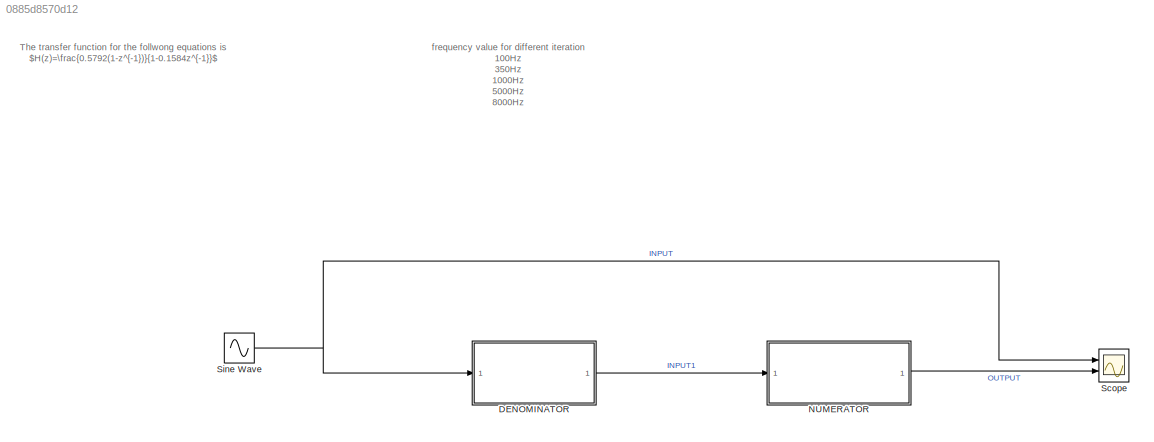
MODEL slx_0885d8570d12
KIND model
CONFIG AbsTol = auto
CONFIG EnableMultiTasking = off
CONFIG FixedStep = auto
CONFIG MaxStep = 0.00002
CONFIG MinStep = auto
CONFIG RelTol = 1e-3
CONFIG SampleTimeConstraint = Unconstrained
CONFIG SolverName = VariableStepAuto
CONFIG StartTime = 0.0
CONFIG StopTime = 10.0
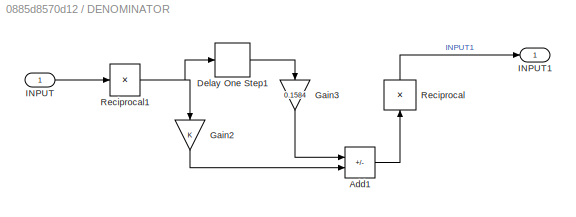
BLOCK [SubSystem] DENOMINATOR
  Ports = [1, 1]
  RequestExecContextInheritance = off
  TreatAsAtomicUnit = on
BLOCK [Sum] DENOMINATOR/Add1
  IconShape = rectangular
  Inputs = -+
  Ports = [2, 1]
BLOCK [Delay] DENOMINATOR/Delay One Step1
  DelayLength = 1
  InputPortMap = u0
  Ports = [1, 1]
BLOCK [Gain] DENOMINATOR/Gain2
  NameLocation = left
BLOCK [Gain] DENOMINATOR/Gain3
  Gain = 0.1584
  NameLocation = left
BLOCK [Inport] DENOMINATOR/INPUT
BLOCK [Outport] DENOMINATOR/INPUT1
BLOCK [Product] DENOMINATOR/Reciprocal
  Inputs = /
  NameLocation = right
  Ports = [1, 1]
BLOCK [Product] DENOMINATOR/Reciprocal1
  Inputs = /
  Ports = [1, 1]
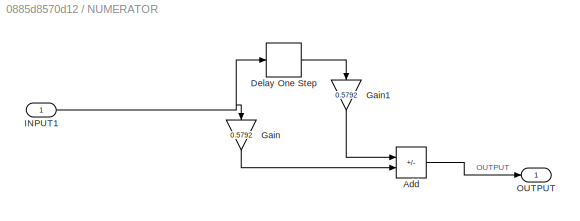
BLOCK [SubSystem] NUMERATOR
  Ports = [1, 1]
  RequestExecContextInheritance = off
  TreatAsAtomicUnit = on
BLOCK [Sum] NUMERATOR/Add
  IconShape = rectangular
  Inputs = -+
  NameLocation = left
  Ports = [2, 1]
BLOCK [Delay] NUMERATOR/Delay One Step
  DelayLength = 1
  InputPortMap = u0
  Ports = [1, 1]
BLOCK [Gain] NUMERATOR/Gain
  Gain = 0.5792
  NameLocation = left
BLOCK [Gain] NUMERATOR/Gain1
  Gain = 0.5792
  NameLocation = left
BLOCK [Inport] NUMERATOR/INPUT1
BLOCK [Outport] NUMERATOR/OUTPUT
BLOCK [Scope] Scope
  Floating = off
  NumInputPorts = 2
  Ports = [2]
  ScopeSpecificationString = Simulink.scopes.TimeScopeBlockCfg('CurrentConfiguration', extmgr.ConfigurationSet(extmgr.Configuration('Core','General UI',true),extmgr.Configuration('Core','Source UI',true),extmgr.Configuration('Sources','WiredSimulink',true),extmgr.Configuration('Visuals','Time Domain',true,'SerializedDisplays',{struct('MinYLimReal','-1.18882','MaxYLimReal','1.18882','YLabelReal','','MinYLimMag','0.00000','MaxY...<+2027ch>
BLOCK [Sin] Sine Wave
  Frequency = 2*pi*100
  Ports = [0, 1]
  SampleTime = 0
ANNOTATION (root): frequency value for different iteration 100Hz 350Hz 1000Hz 5000Hz 8000Hz 10000Hz
ANNOTATION (root): The transfer function for the follwong equations is $H(z)=\frac{0.5792(1-z^{-1})}{1-0.1584z^{-1}}$
LINE DENOMINATOR/Add1:1 -> DENOMINATOR/Reciprocal:1
LINE DENOMINATOR/Delay One Step1:1 -> DENOMINATOR/Gain3:1
LINE DENOMINATOR/Gain2:1 -> DENOMINATOR/Add1:2
LINE DENOMINATOR/Gain3:1 -> DENOMINATOR/Add1:1
LINE DENOMINATOR/INPUT:1 -> DENOMINATOR/Reciprocal1:1
NET DENOMINATOR/Reciprocal1:1 -> DENOMINATOR/Delay One Step1:1, DENOMINATOR/Gain2:1
LINE DENOMINATOR/Reciprocal:1 -> DENOMINATOR/INPUT1:1
LINE DENOMINATOR:1 -> NUMERATOR:1
LINE NUMERATOR/Add:1 -> NUMERATOR/OUTPUT:1
LINE NUMERATOR/Delay One Step:1 -> NUMERATOR/Gain1:1
LINE NUMERATOR/Gain1:1 -> NUMERATOR/Add:1
LINE NUMERATOR/Gain:1 -> NUMERATOR/Add:2
NET NUMERATOR/INPUT1:1 -> NUMERATOR/Delay One Step:1, NUMERATOR/Gain:1
LINE NUMERATOR:1 -> Scope:2
NET Sine Wave:1 -> DENOMINATOR:1, Scope:1
note: NET lines group one-source signal fan-out (src -> all destinations, sorted); 1:1 wires keep LINE
